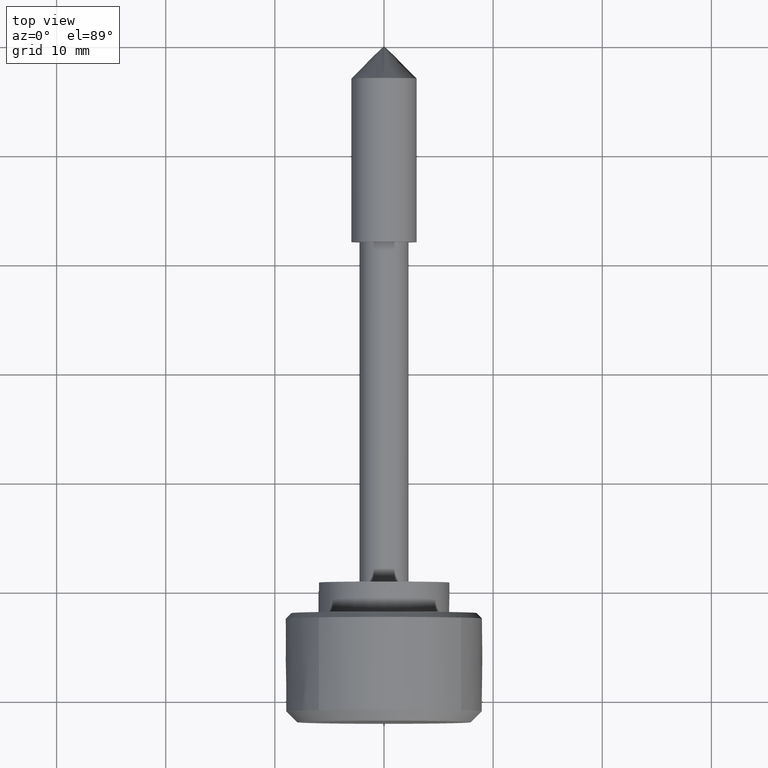
[diagram: clean part render]
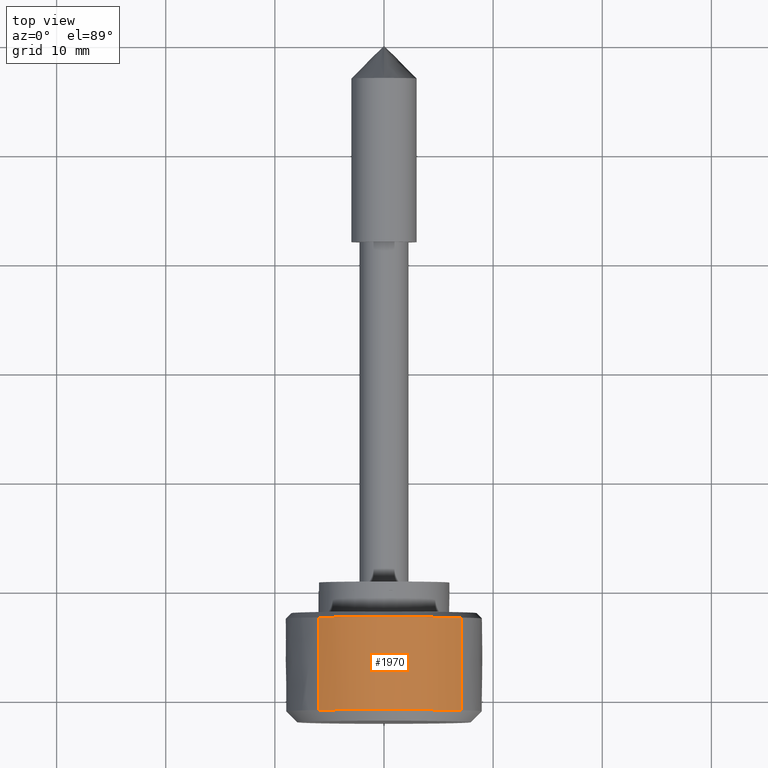
[diagram: same view with one face highlighted and labeled with its STEP entity id]
A machine part, top view. The second image highlights one B-rep face of the part: STEP entity #1970.
In plain terms, the highlighted face is a freeform B-spline surface patch.
Its self-contained STEP definition (entity closure, byte-faithful):
#1489=CARTESIAN_POINT('',(-2.499999999999945,5.963579053005738,6.740602708849393));
#1490=VERTEX_POINT('',#1489);
#1506=CARTESIAN_POINT('',(-2.499999999999945,0.0,9.0));
#1507=VERTEX_POINT('',#1506);
#1508=CARTESIAN_POINT('',(-2.499999999999945,0.0,9.0));
#1509=CARTESIAN_POINT('',(-2.499999999999945,3.409793924020311,9.0));
#1510=CARTESIAN_POINT('',(-2.499999999999945,5.963579053005738,6.740602708849393));
#1518=(BOUNDED_CURVE()B_SPLINE_CURVE(2,(#1508,#1509,#1510),.UNSPECIFIED.,.F.,.U.)B_SPLINE_CURVE_WITH_KNOTS((3,3),(0.500000000000000,0.615779857118475),.UNSPECIFIED.)CURVE()GEOMETRIC_REPRESENTATION_ITEM()RATIONAL_B_SPLINE_CURVE((1.0,0.864355459899233,0.854350163572611))REPRESENTATION_ITEM(''));
#1519=EDGE_CURVE('',#1507,#1490,#1518,.T.);
#1521=CARTESIAN_POINT('',(-2.499999999999946,-7.070639730085400,5.568307984238757));
#1522=VERTEX_POINT('',#1521);
#1523=CARTESIAN_POINT('',(-2.499999999999946,-7.070639730085400,5.568307984238757));
#1524=CARTESIAN_POINT('',(-2.499999999999945,-4.368095826378223,9.0));
#1525=CARTESIAN_POINT('',(-2.499999999999945,0.0,9.0));
#1533=(BOUNDED_CURVE()B_SPLINE_CURVE(2,(#1523,#1524,#1525),.UNSPECIFIED.,.F.,.U.)B_SPLINE_CURVE_WITH_KNOTS((3,3),(0.357127511979763,0.500000000000000),.UNSPECIFIED.)CURVE()GEOMETRIC_REPRESENTATION_ITEM()RATIONAL_B_SPLINE_CURVE((0.856547235679510,0.832614468415465,1.0))REPRESENTATION_ITEM(''));
#1534=EDGE_CURVE('',#1522,#1507,#1533,.T.);
#1807=CARTESIAN_POINT('',(-10.999900000000000,-7.070639630204351,5.568308111067774));
#1808=VERTEX_POINT('',#1807);
#1899=CARTESIAN_POINT('',(-10.999900000000030,5.963580206875316,6.740601687992314));
#1900=VERTEX_POINT('',#1899);
#1914=CARTESIAN_POINT('',(-10.999900000000030,5.963580206875316,6.740601687992314));
#1915=CARTESIAN_POINT('',(-2.499999999999945,5.963579053005738,6.740602708849393));
#1916=QUASI_UNIFORM_CURVE('',1,(#1914,#1915),.UNSPECIFIED.,.F.,.U.);
#1917=EDGE_CURVE('',#1900,#1490,#1916,.T.);
#1923=CARTESIAN_POINT('',(-10.999900000000000,-7.070639630204351,5.568308111067774));
#1924=CARTESIAN_POINT('',(-2.499999999999946,-7.070639730085400,5.568307984238757));
#1925=QUASI_UNIFORM_CURVE('',1,(#1923,#1924),.UNSPECIFIED.,.F.,.U.);
#1926=EDGE_CURVE('',#1808,#1522,#1925,.T.);
#1931=CARTESIAN_POINT('',(-11.212397500000000,5.963580433941632,6.740601487101019));
#1932=CARTESIAN_POINT('',(-11.212397500000003,-0.777021053159387,12.704181921042650));
#1933=CARTESIAN_POINT('',(-11.212397500000000,-6.740601487101019,5.963580433941632));
#1934=CARTESIAN_POINT('',(-11.212397500000007,-6.911276596992985,5.770667315339068));
#1935=CARTESIAN_POINT('',(-11.212397500000002,-7.070639198512934,5.568308659229686));
#1936=CARTESIAN_POINT('',(-2.282190062499943,5.963580433941632,6.740601487101019));
#1937=CARTESIAN_POINT('',(-2.282190062499943,-0.777021053159387,12.704181921042650));
#1938=CARTESIAN_POINT('',(-2.282190062499943,-6.740601487101019,5.963580433941632));
#1939=CARTESIAN_POINT('',(-2.282190062499943,-6.911276596992985,5.770667315339068));
#1940=CARTESIAN_POINT('',(-2.282190062499944,-7.070639198512934,5.568308659229686));
#1948=(BOUNDED_SURFACE()B_SPLINE_SURFACE(2,1,((#1931,#1936),(#1932,#1937),(#1933,#1938),(#1934,#1939),(#1935,#1940)),.UNSPECIFIED.,.F.,.F.,.U.)B_SPLINE_SURFACE_WITH_KNOTS((3,2,3),(2,2),(0.0,14.911688245431410,15.508155775248669),(0.0,8.930207437500062),.UNSPECIFIED.)GEOMETRIC_REPRESENTATION_ITEM()RATIONAL_B_SPLINE_SURFACE(((1.0,1.0),(0.707106781186548,0.707106781186548),(1.0,1.0),(0.988284271247462,0.988284271247462),(0.977505800795127,0.977505800795127)))REPRESENTATION_ITEM('')SURFACE());
#1949=CARTESIAN_POINT('',(-10.999900000000025,5.963580206875317,6.740601687992314));
#1950=CARTESIAN_POINT('',(-10.999900000000002,3.409794631562698,9.0));
#1951=CARTESIAN_POINT('',(-10.999900000000000,0.0,9.0));
#1952=CARTESIAN_POINT('',(-10.999899999999998,-4.368095626913625,9.0));
#1953=CARTESIAN_POINT('',(-10.999899999999997,-7.070639630204351,5.568308111067775));
#1961=(BOUNDED_CURVE()B_SPLINE_CURVE(2,(#1949,#1950,#1951,#1952,#1953),.UNSPECIFIED.,.F.,.U.)B_SPLINE_CURVE_WITH_KNOTS((3,2,3),(0.253570819549469,0.500000000000000,0.804778667050343),.UNSPECIFIED.)CURVE()GEOMETRIC_REPRESENTATION_ITEM()RATIONAL_B_SPLINE_CURVE((0.870836280685157,0.872655182145628,1.0,0.842502483794871,0.877012499800698))REPRESENTATION_ITEM(''));
#1962=EDGE_CURVE('',#1900,#1808,#1961,.T.);
#1963=ORIENTED_EDGE('',*,*,#1962,.T.);
#1964=ORIENTED_EDGE('',*,*,#1926,.T.);
#1965=ORIENTED_EDGE('',*,*,#1534,.T.);
#1966=ORIENTED_EDGE('',*,*,#1519,.T.);
#1967=ORIENTED_EDGE('',*,*,#1917,.F.);
#1968=EDGE_LOOP('',(#1963,#1964,#1965,#1966,#1967));
#1969=FACE_OUTER_BOUND('',#1968,.T.);
#1970=ADVANCED_FACE('',(#1969),#1948,.T.);